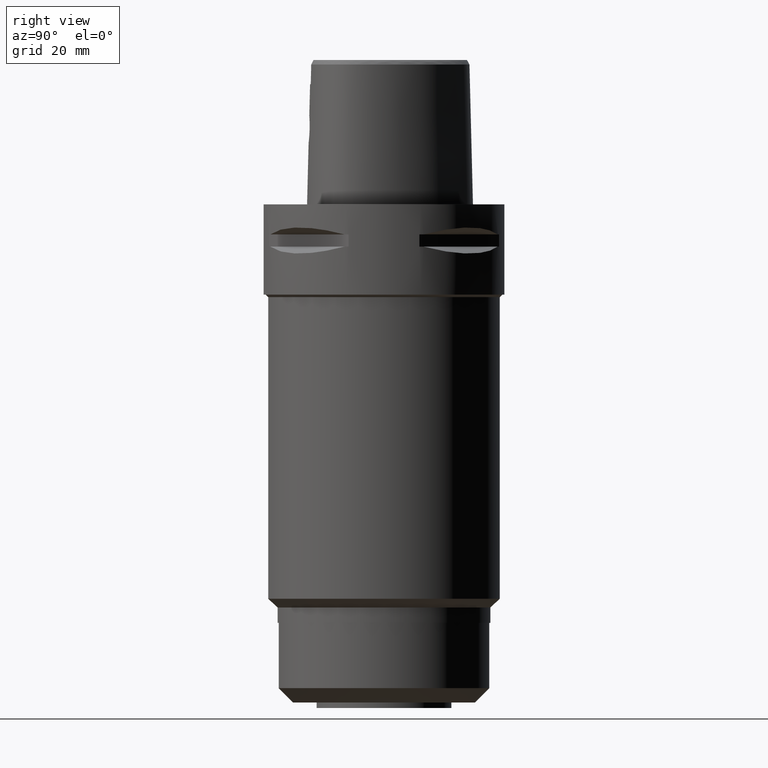
[diagram: clean part render]
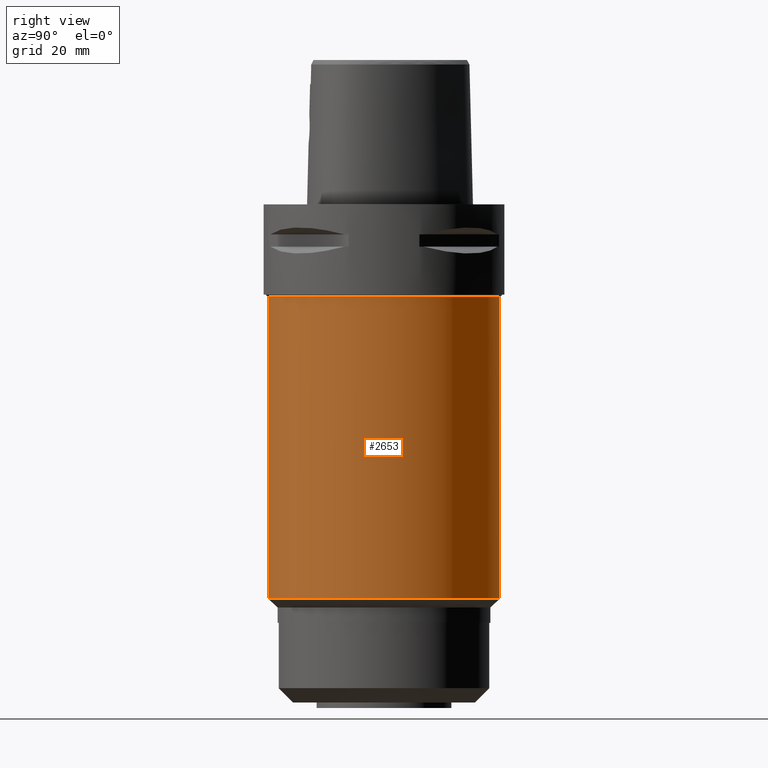
[diagram: same view with one face highlighted and labeled with its STEP entity id]
A machine part, right view. The second image highlights one B-rep face of the part: STEP entity #2653.
In plain terms, the highlighted cylindrical surface (partial cylindrical patch) has radius 38.5 mm, axis along (0, 0, -1).
Its self-contained STEP definition (entity closure, byte-faithful):
#542=CARTESIAN_POINT('',(0.E0,0.E0,-3.08E1));
#543=DIRECTION('',(0.E0,0.E0,-1.E0));
#544=DIRECTION('',(0.E0,1.E0,0.E0));
#545=AXIS2_PLACEMENT_3D('',#542,#543,#544);
#550=DIRECTION('',(0.E0,5.610666467816E-14,-1.E0));
#551=VECTOR('',#550,1.003E2);
#552=CARTESIAN_POINT('',(0.E0,3.85E1,-3.08E1));
#553=LINE('',#552,#551);
#557=DIRECTION('',(0.E0,-5.610666467816E-14,-1.E0));
#558=VECTOR('',#557,1.003E2);
#559=CARTESIAN_POINT('',(0.E0,-3.85E1,-3.08E1));
#560=LINE('',#559,#558);
#602=CARTESIAN_POINT('',(0.E0,0.E0,-1.311E2));
#603=DIRECTION('',(0.E0,0.E0,1.E0));
#604=DIRECTION('',(0.E0,-1.E0,0.E0));
#605=AXIS2_PLACEMENT_3D('',#602,#603,#604);
#1649=CARTESIAN_POINT('',(0.E0,3.85E1,-3.08E1));
#1650=VERTEX_POINT('',#1649);
#1651=CARTESIAN_POINT('',(0.E0,-3.85E1,-3.08E1));
#1652=VERTEX_POINT('',#1651);
#1653=CARTESIAN_POINT('',(0.E0,3.850000000001E1,-1.311E2));
#1654=VERTEX_POINT('',#1653);
#1655=CARTESIAN_POINT('',(0.E0,-3.850000000001E1,-1.311E2));
#1656=VERTEX_POINT('',#1655);
#2639=CARTESIAN_POINT('',(0.E0,1.327149736236E-14,8.37E0));
#2640=DIRECTION('',(0.E0,0.E0,-1.E0));
#2641=DIRECTION('',(0.E0,-1.E0,0.E0));
#2642=AXIS2_PLACEMENT_3D('',#2639,#2640,#2641);
#2643=CYLINDRICAL_SURFACE('',#2642,3.85E1);
#2645=ORIENTED_EDGE('',*,*,#2644,.T.);
#2647=ORIENTED_EDGE('',*,*,#2646,.F.);
#2649=ORIENTED_EDGE('',*,*,#2648,.F.);
#2650=ORIENTED_EDGE('',*,*,#2632,.F.);
#2651=EDGE_LOOP('',(#2645,#2647,#2649,#2650));
#2652=FACE_OUTER_BOUND('',#2651,.F.);
#546=CIRCLE('',#545,3.85E1);
#606=CIRCLE('',#605,3.850000000001E1);
#2632=EDGE_CURVE('',#1650,#1652,#546,.T.);
#2644=EDGE_CURVE('',#1650,#1654,#553,.T.);
#2646=EDGE_CURVE('',#1656,#1654,#606,.T.);
#2648=EDGE_CURVE('',#1652,#1656,#560,.T.);
#2653=ADVANCED_FACE('',(#2652),#2643,.T.);